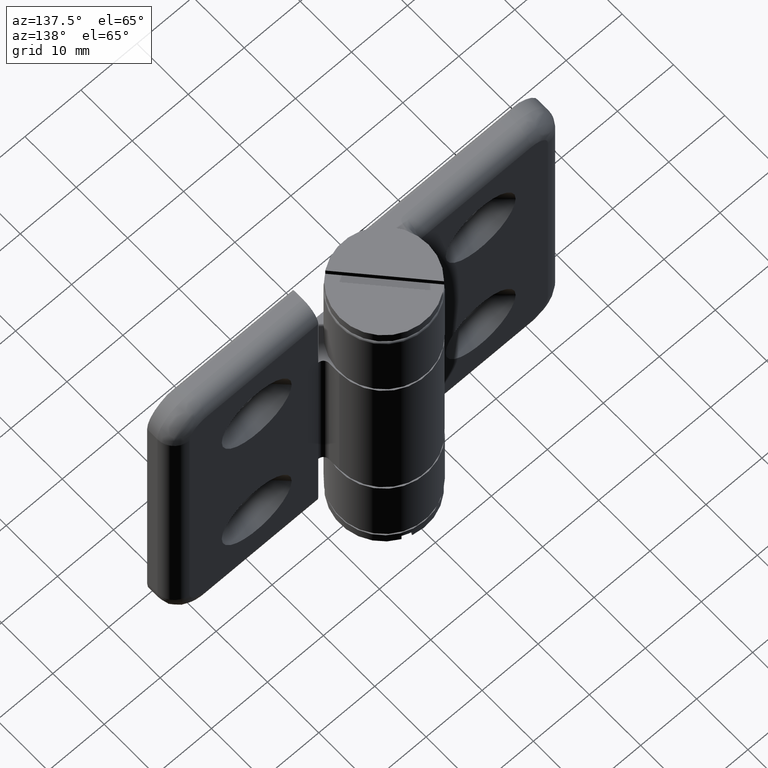
[diagram: clean part render]
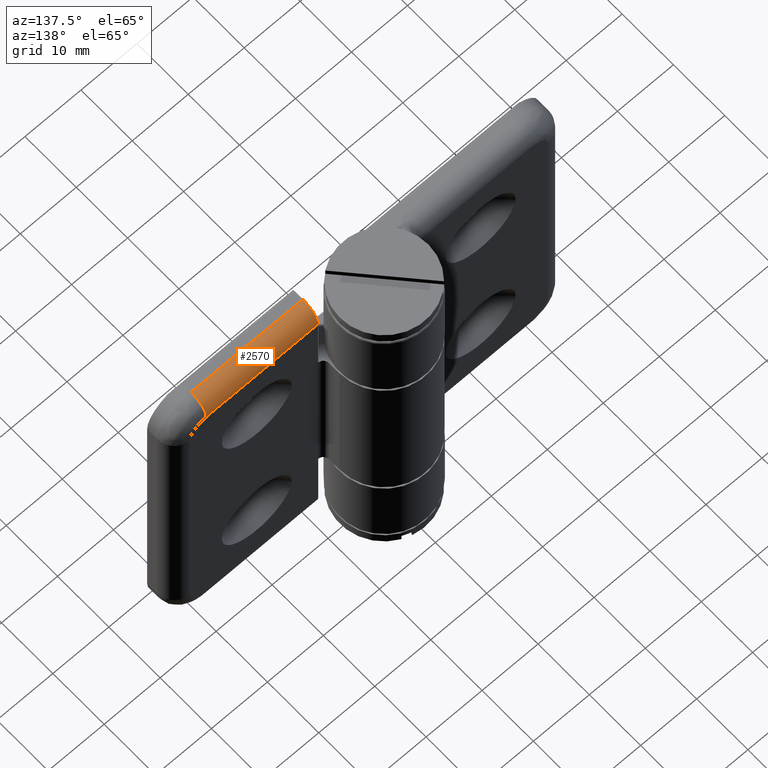
[diagram: same view with one face highlighted and labeled with its STEP entity id]
A machine part, auxiliary view. The second image highlights one B-rep face of the part: STEP entity #2570.
In plain terms, the highlighted cylindrical surface (edge-blend (fillet) strip) has radius 3 mm, axis along (1, 0, -0).
Its self-contained STEP definition (entity closure, byte-faithful):
#280=LINE('',#4667,#454);
#281=LINE('',#4670,#455);
#454=VECTOR('',#3603,20.);
#455=VECTOR('',#3606,20.);
#586=CYLINDRICAL_SURFACE('',#2862,3.);
#739=FACE_OUTER_BOUND('',#959,.T.);
#959=EDGE_LOOP('',(#2287,#2288,#2289,#2290));
#1094=CIRCLE('',#2856,3.);
#1098=CIRCLE('',#2863,3.);
#1324=VERTEX_POINT('',#4639);
#1326=VERTEX_POINT('',#4643);
#1329=VERTEX_POINT('',#4666);
#1330=VERTEX_POINT('',#4668);
#1649=EDGE_CURVE('',#1324,#1326,#1094,.T.);
#1656=EDGE_CURVE('',#1326,#1329,#280,.T.);
#1657=EDGE_CURVE('',#1329,#1330,#1098,.T.);
#1658=EDGE_CURVE('',#1330,#1324,#281,.T.);
#2287=ORIENTED_EDGE('',*,*,#1656,.T.);
#2288=ORIENTED_EDGE('',*,*,#1657,.T.);
#2289=ORIENTED_EDGE('',*,*,#1658,.T.);
#2290=ORIENTED_EDGE('',*,*,#1649,.T.);
#2570=ADVANCED_FACE('',(#739),#586,.T.);
#2856=AXIS2_PLACEMENT_3D('',#4645,#3586,#3587);
#2862=AXIS2_PLACEMENT_3D('',#4665,#3601,#3602);
#2863=AXIS2_PLACEMENT_3D('',#4669,#3604,#3605);
#3586=DIRECTION('center_axis',(1.,0.,0.));
#3587=DIRECTION('ref_axis',(0.,0.,-1.));
#3601=DIRECTION('center_axis',(-1.,-1.85037170770859E-16,0.));
#3602=DIRECTION('ref_axis',(-1.30841038223648E-16,0.707106781186548,-0.707106781186547));
#3603=DIRECTION('',(1.,1.85037170770859E-16,0.));
#3604=DIRECTION('center_axis',(-1.,-2.96059473233375E-16,0.));
#3605=DIRECTION('ref_axis',(-2.09345661157837E-16,0.707106781186548,-0.707106781186547));
#3606=DIRECTION('',(-1.,-1.85037170770859E-16,0.));
#4639=CARTESIAN_POINT('',(-29.,-6.00000000000001,-30.));
#4643=CARTESIAN_POINT('',(-29.,-3.00000000000001,-27.));
#4645=CARTESIAN_POINT('Origin',(-29.,-6.00000000000001,-27.));
#4665=CARTESIAN_POINT('Origin',(-23.760997035644,-6.00000000000001,-27.));
#4666=CARTESIAN_POINT('',(-9.,-3.,-27.));
#4667=CARTESIAN_POINT('',(-23.760997035644,-3.00000000000001,-27.));
#4668=CARTESIAN_POINT('',(-9.,-6.00000000000001,-30.));
#4669=CARTESIAN_POINT('Origin',(-8.99999999999999,-6.00000000000001,-27.));
#4670=CARTESIAN_POINT('',(-23.760997035644,-6.00000000000001,-30.));